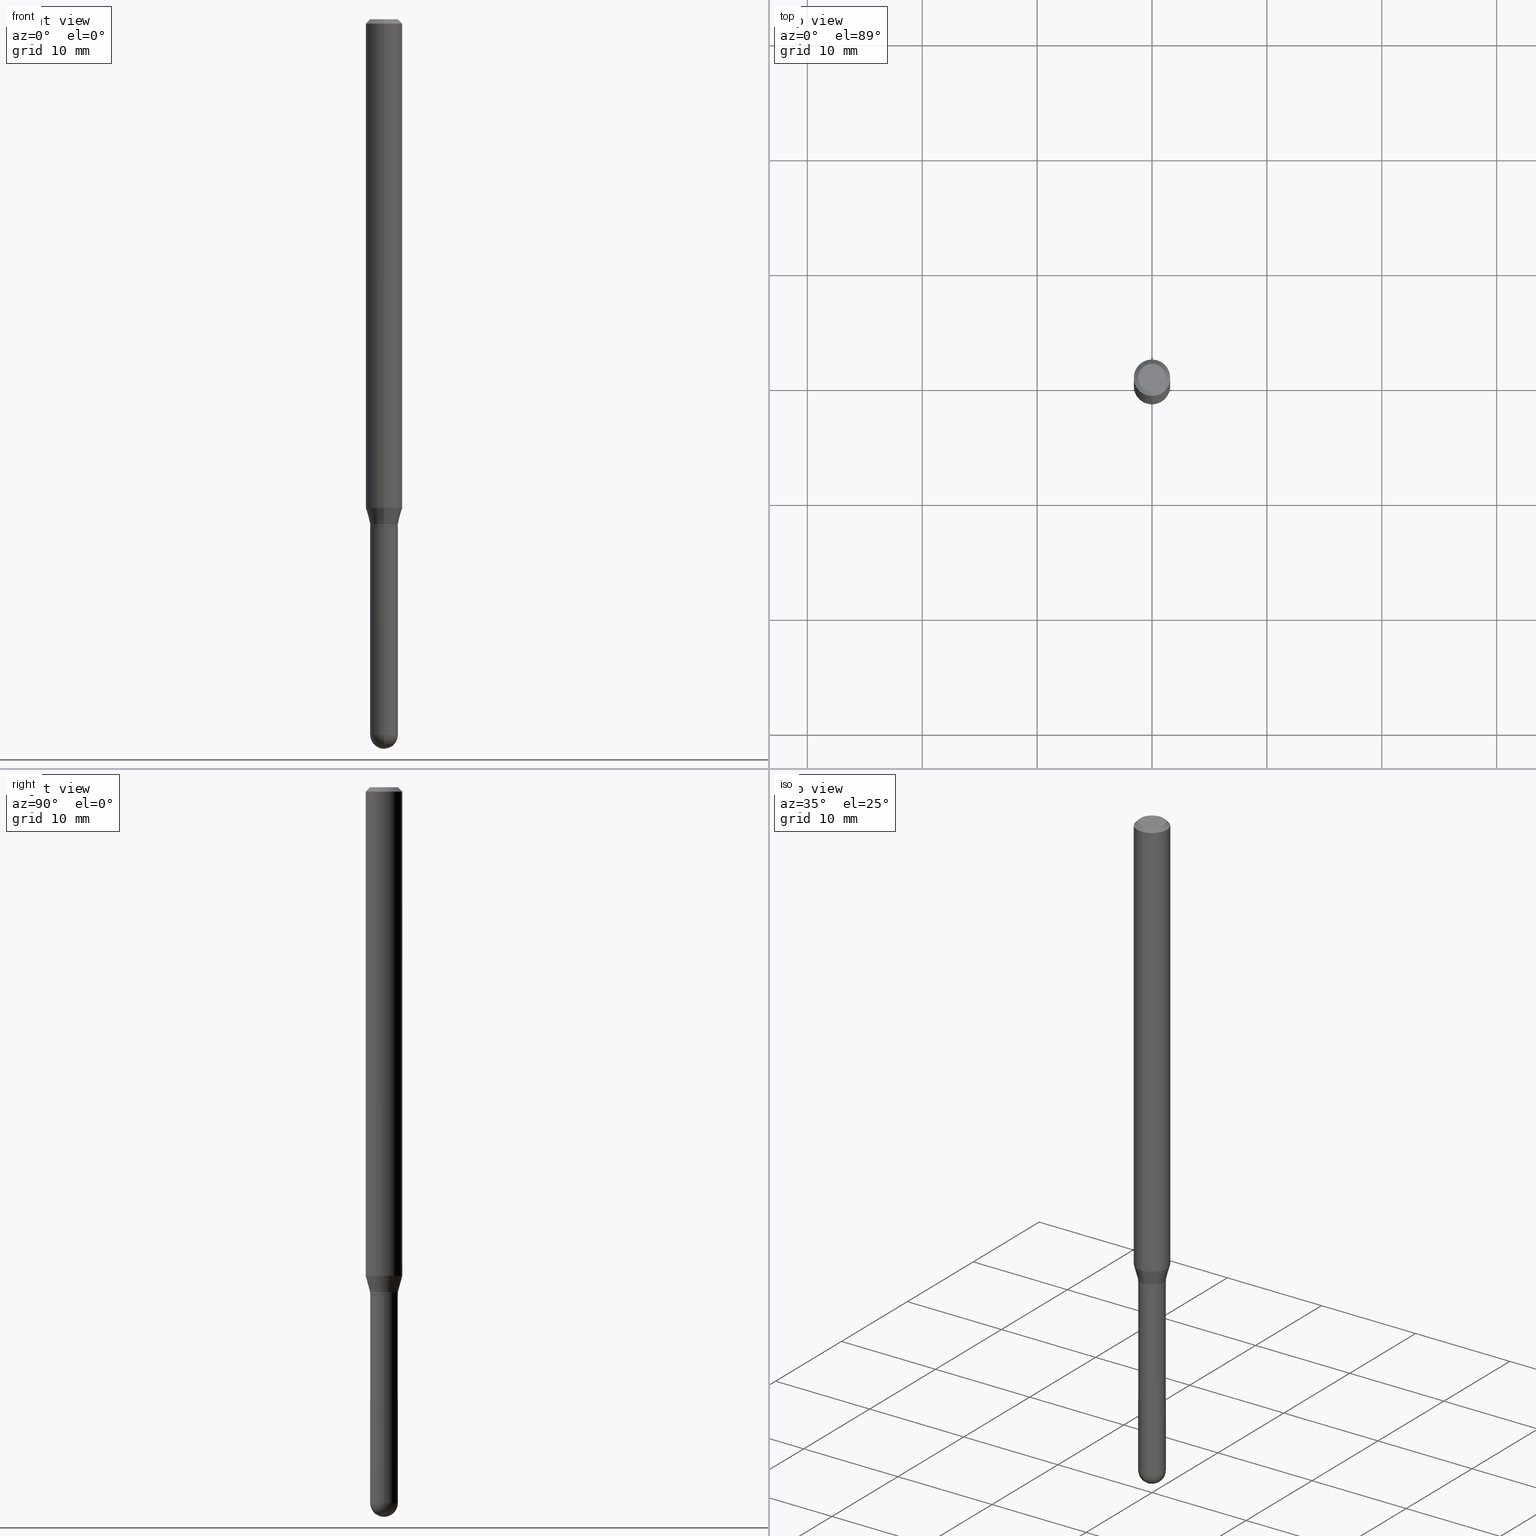
[diagram: canonical four-view strip — front | top / right | iso, engineering-drawing reading convention]
A machine part, canonical four-view strip (front | top / right | iso — engineering-drawing reading convention). The complete STEP part file that produces these views, byte-faithful:
ISO-10303-21;
HEADER;
FILE_DESCRIPTION (( 'STEP AP203' ),
    '1' );
FILE_NAME ('02769.STEP',
    '2024-03-07T21:22:24',
    ( '' ),
    ( '' ),
    'SwSTEP 2.0',
    'SolidWorks 2023',
    '' );
FILE_SCHEMA (( 'CONFIG_CONTROL_DESIGN' ));
ENDSEC;

DATA;
#1 = FACE_OUTER_BOUND ( 'NONE', #468, .T. ) ;
#2 = AXIS2_PLACEMENT_3D ( 'NONE', #217, #14, #355 ) ;
#3 = VERTEX_POINT ( 'NONE', #222 ) ;
#4 = EDGE_CURVE ( 'NONE', #3, #24, #360, .T. ) ;
#5 = CARTESIAN_POINT ( 'NONE',  ( 3.375077994860450284E-16, 0.04749999999999964667, -1.658461561688037794E-16 ) ) ;
#6 = ORIENTED_EDGE ( 'NONE', *, *, #466, .F. ) ;
#7 = CARTESIAN_POINT ( 'NONE',  ( 0.04750000000000000749, -3.316907271900977082E-16, 2.316183968503069432E-30 ) ) ;
#8 = APPROVAL_DATE_TIME ( #96, #434 ) ;
#9 = EDGE_CURVE ( 'NONE', #505, #62, #481, .T. ) ;
#10 = CIRCLE ( 'NONE', #73, 0.04750000000000000749 ) ;
#11 = DATE_AND_TIME ( #188, #374 ) ;
#12 = AXIS2_PLACEMENT_3D ( 'NONE', #494, #421, #322 ) ;
#13 = CONICAL_SURFACE ( 'NONE', #2, 0.06250000000000000000, 0.7853981633974483900 ) ;
#14 = DIRECTION ( 'NONE',  ( 2.445457154578916466E-29, -3.491498024606421119E-15, -1.000000000000000000 ) ) ;
#15 = PRODUCT_DEFINITION ( 'UNKNOWN', '', #273, #167 ) ;
#16 = VERTEX_POINT ( 'NONE', #214 ) ;
#17 = CARTESIAN_POINT ( 'NONE',  ( 6.111640995526039814E-29, -8.731611883255838356E-15, -2.500000000000000000 ) ) ;
#18 = COORDINATED_UNIVERSAL_TIME_OFFSET ( 5, 0, .BEHIND. ) ;
#19 = EDGE_CURVE ( 'NONE', #376, #256, #134, .T. ) ;
#20 = CONICAL_SURFACE ( 'NONE', #122, 0.04749999999999964667, 0.2617993877991505181 ) ;
#21 = ORIENTED_EDGE ( 'NONE', *, *, #263, .T. ) ;
#22 = COORDINATED_UNIVERSAL_TIME_OFFSET ( 5, 0, .BEHIND. ) ;
#23 = CYLINDRICAL_SURFACE ( 'NONE', #55, 0.06250000000000000000 ) ;
#24 = VERTEX_POINT ( 'NONE', #300 ) ;
#25 = DIRECTION ( 'NONE',  ( 6.982962677686265922E-15, 1.000000000000000000, -3.483106191921935554E-15 ) ) ;
#26 = SECURITY_CLASSIFICATION_LEVEL ( 'unclassified' ) ;
#27 = DIRECTION ( 'NONE',  ( -6.982962677686266711E-15, -1.000000000000000000, 5.812442539711199378E-15 ) ) ;
#28 = EDGE_CURVE ( 'NONE', #301, #161, #270, .T. ) ;
#29 = ORIENTED_EDGE ( 'NONE', *, *, #425, .F. ) ;
#30 = LOCAL_TIME ( 16, 22, 24.00000000000000000, #185 ) ;
#31 = DIRECTION ( 'NONE',  ( 0.000000000000000000, 0.000000000000000000, 1.000000000000000000 ) ) ;
#32 = ORIENTED_EDGE ( 'NONE', *, *, #9, .T. ) ;
#33 = FACE_OUTER_BOUND ( 'NONE', #43, .T. ) ;
#34 = ORIENTED_EDGE ( 'NONE', *, *, #93, .T. ) ;
#35 = PRODUCT_DEFINITION_SHAPE ( 'NONE', 'NONE',  #15 ) ;
#36 = ORIENTED_EDGE ( 'NONE', *, *, #103, .F. ) ;
#37 = ORIENTED_EDGE ( 'NONE', *, *, #333, .T. ) ;
#38 = AXIS2_PLACEMENT_3D ( 'NONE', #171, #313, #283 ) ;
#39 = DIRECTION ( 'NONE',  ( 1.000000000000000000, -6.982962677686280910E-15, 0.000000000000000000 ) ) ;
#40 = AXIS2_PLACEMENT_3D ( 'NONE', #305, #461, #420 ) ;
#41 = AXIS2_PLACEMENT_3D ( 'NONE', #344, #272, #121 ) ;
#42 = DIRECTION ( 'NONE',  ( 1.000000000000000000, -6.982962677686280910E-15, 0.000000000000000000 ) ) ;
#43 = EDGE_LOOP ( 'NONE', ( #123, #46, #338, #271 ) ) ;
#44 = DIRECTION ( 'NONE',  ( -2.445468806185136597E-29, 3.491481338843145583E-15, 1.000000000000000000 ) ) ;
#45 = EDGE_LOOP ( 'NONE', ( #130, #345, #107, #21, #471 ) ) ;
#46 = ORIENTED_EDGE ( 'NONE', *, *, #281, .T. ) ;
#47 = DIRECTION ( 'NONE',  ( -6.982962677686265922E-15, -1.000000000000000000, 4.370956789862821150E-15 ) ) ;
#48 = ORIENTED_EDGE ( 'NONE', *, *, #170, .F. ) ;
#49 = EDGE_CURVE ( 'NONE', #3, #256, #334, .T. ) ;
#50 = DIRECTION ( 'NONE',  ( 6.982962677686265922E-15, 1.000000000000000000, 0.000000000000000000 ) ) ;
#51 = ORIENTED_EDGE ( 'NONE', *, *, #103, .T. ) ;
#52 = DIRECTION ( 'NONE',  ( -2.445457154578916466E-29, 3.491498024606421119E-15, 1.000000000000000000 ) ) ;
#53 = LENGTH_MEASURE_WITH_UNIT ( LENGTH_MEASURE( 0.02539999999999999897 ), #175 );
#54 = ORIENTED_EDGE ( 'NONE', *, *, #115, .F. ) ;
#55 = AXIS2_PLACEMENT_3D ( 'NONE', #105, #192, #59 ) ;
#56 = PERSON_AND_ORGANIZATION ( #413, #259 ) ;
#57 = CIRCLE ( 'NONE', #40, 0.04699999999999999317 ) ;
#58 = CARTESIAN_POINT ( 'NONE',  ( 4.253872720390026120E-29, -6.073460813802870975E-15, -1.739500000000000490 ) ) ;
#59 = DIRECTION ( 'NONE',  ( -6.982962677686265922E-15, -1.000000000000000000, 3.491498024606421119E-15 ) ) ;
#60 = ADVANCED_FACE ( 'NONE', ( #228 ), #432, .T. ) ;
#61 = CALENDAR_DATE ( 2024, 7, 3 ) ;
#62 = VERTEX_POINT ( 'NONE', #65 ) ;
#63 = VECTOR ( 'NONE', #250, 39.37007874015748143 ) ;
#64 = VECTOR ( 'NONE', #340, 39.37007874015748143 ) ;
#65 = CARTESIAN_POINT ( 'NONE',  ( -0.04749999999999999362, -6.981509957063897703E-15, -1.740000000000000213 ) ) ;
#66 = FACE_OUTER_BOUND ( 'NONE', #399, .T. ) ;
#67 = EDGE_LOOP ( 'NONE', ( #86, #436 ) ) ;
#68 = CARTESIAN_POINT ( 'NONE',  ( 0.000000000000000000, 0.000000000000000000, 0.000000000000000000 ) ) ;
#69 = SHAPE_DEFINITION_REPRESENTATION ( #35, #406 ) ;
#70 = ADVANCED_FACE ( 'NONE', ( #370 ), #290, .T. ) ;
#71 = PERSON_AND_ORGANIZATION ( #413, #259 ) ;
#72 = CARTESIAN_POINT ( 'NONE',  ( 3.339550858072895387E-16, 0.04699999999999391470, -1.740000000000000213 ) ) ;
#73 = AXIS2_PLACEMENT_3D ( 'NONE', #299, #492, #146 ) ;
#74 = ORIENTED_EDGE ( 'NONE', *, *, #242, .T. ) ;
#75 = CARTESIAN_POINT ( 'NONE',  ( 5.997512247169047773E-29, -8.562857983512815004E-15, -2.452500000000000124 ) ) ;
#76 = VECTOR ( 'NONE', #233, 39.37007874015748143 ) ;
#77 = ORIENTED_EDGE ( 'NONE', *, *, #151, .F. ) ;
#78 = DIRECTION ( 'NONE',  ( -7.105427357601001070E-15, -1.000000000000000000, 0.000000000000000000 ) ) ;
#79 = VERTEX_POINT ( 'NONE', #193 ) ;
#80 = ORIENTED_EDGE ( 'NONE', *, *, #501, .F. ) ;
#81 = APPLICATION_CONTEXT ( 'configuration controlled 3d designs of mechanical parts and assemblies' ) ;
#82 = AXIS2_PLACEMENT_3D ( 'NONE', #293, #489, #455 ) ;
#83 = CARTESIAN_POINT ( 'NONE',  ( -4.287811248607203282E-16, -0.06250000000000005551, -0.01500000000000011047 ) ) ;
#84 = AXIS2_PLACEMENT_3D ( 'NONE', #456, #241, #112 ) ;
#85 = SECURITY_CLASSIFICATION ( '', '', #26 ) ;
#86 = ORIENTED_EDGE ( 'NONE', *, *, #151, .T. ) ;
#87 = ADVANCED_FACE ( 'NONE', ( #369 ), #451, .T. ) ;
#88 = ORIENTED_EDGE ( 'NONE', *, *, #4, .T. ) ;
#89 = FACE_OUTER_BOUND ( 'NONE', #212, .T. ) ;
#90 = CC_DESIGN_PERSON_AND_ORGANIZATION_ASSIGNMENT ( #159, #232, ( #85 ) ) ;
#91 = CARTESIAN_POINT ( 'NONE',  ( 4.255095448967314724E-29, -6.075206562815173394E-15, -1.739999999999999991 ) ) ;
#92 = CIRCLE ( 'NONE', #365, 0.04749999999999971606 ) ;
#93 = EDGE_CURVE ( 'NONE', #377, #301, #57, .T. ) ;
#94 = CARTESIAN_POINT ( 'NONE',  ( 4.255115722762138620E-29, -6.075177529587074600E-15, -1.740000000000000213 ) ) ;
#95 = ORIENTED_EDGE ( 'NONE', *, *, #28, .F. ) ;
#96 = DATE_AND_TIME ( #61, #30 ) ;
#97 = CARTESIAN_POINT ( 'NONE',  ( 4.230640877421526403E-29, -6.040291582569108449E-15, -1.730000000000000204 ) ) ;
#98 = EDGE_LOOP ( 'NONE', ( #95, #499, #224, #219 ) ) ;
#99 = PLANE ( 'NONE',  #266 ) ;
#100 = AXIS2_PLACEMENT_3D ( 'NONE', #373, #31, #157 ) ;
#101 = DIRECTION ( 'NONE',  ( 2.445457154578916466E-29, -3.491498024606421119E-15, -1.000000000000000000 ) ) ;
#102 = DIRECTION ( 'NONE',  ( -6.982962677686265922E-15, -1.000000000000000000, 3.483106191921935554E-15 ) ) ;
#103 = EDGE_CURVE ( 'NONE', #303, #62, #223, .T. ) ;
#104 = ORIENTED_EDGE ( 'NONE', *, *, #368, .T. ) ;
#105 = CARTESIAN_POINT ( 'NONE',  ( 0.000000000000000000, 0.000000000000000000, 0.000000000000000000 ) ) ;
#106 = COORDINATED_UNIVERSAL_TIME_OFFSET ( 5, 0, .BEHIND. ) ;
#107 = ORIENTED_EDGE ( 'NONE', *, *, #199, .T. ) ;
#108 = AXIS2_PLACEMENT_3D ( 'NONE', #398, #353, #389 ) ;
#109 = EDGE_CURVE ( 'NONE', #377, #502, #269, .T. ) ;
#110 = CARTESIAN_POINT ( 'NONE',  ( 4.364351673553919652E-16, 0.06249999999999995143, -0.01500000000000054588 ) ) ;
#111 = AXIS2_PLACEMENT_3D ( 'NONE', #91, #230, #323 ) ;
#112 = DIRECTION ( 'NONE',  ( 1.000000000000000000, -6.982962677686261977E-15, 0.000000000000000000 ) ) ;
#113 = ORIENTED_EDGE ( 'NONE', *, *, #449, .F. ) ;
#114 = APPROVAL_DATE_TIME ( #411, #184 ) ;
#115 = EDGE_CURVE ( 'NONE', #256, #16, #375, .T. ) ;
#116 = CARTESIAN_POINT ( 'NONE',  ( 0.04750000000000000749, -7.650708483740042707E-15, -2.452500000000000124 ) ) ;
#117 = PRODUCT ( '02769', '02769', '', ( #438 ) ) ;
#118 = CYLINDRICAL_SURFACE ( 'NONE', #41, 0.04749999999999964667 ) ;
#119 = VERTEX_POINT ( 'NONE', #381 ) ;
#120 = LOCAL_TIME ( 16, 22, 24.00000000000000000, #500 ) ;
#121 = DIRECTION ( 'NONE',  ( -6.982962677686265133E-15, -1.000000000000000000, 3.491498024606421514E-15 ) ) ;
#122 = AXIS2_PLACEMENT_3D ( 'NONE', #206, #306, #430 ) ;
#123 = ORIENTED_EDGE ( 'NONE', *, *, #275, .F. ) ;
#124 = CARTESIAN_POINT ( 'NONE',  ( 5.993450207295445537E-29, -8.568675055808764986E-15, -2.452500000000000124 ) ) ;
#125 = CARTESIAN_POINT ( 'NONE',  ( -4.364351673553916201E-16, -0.06250000000000000000, 2.182186265379013199E-16 ) ) ;
#126 = DIRECTION ( 'NONE',  ( -1.000000000000000000, 7.105427357601001070E-15, -4.926315508542082329E-29 ) ) ;
#127 = ORIENTED_EDGE ( 'NONE', *, *, #404, .T. ) ;
#128 = ORIENTED_EDGE ( 'NONE', *, *, #183, .F. ) ;
#129 = AXIS2_PLACEMENT_3D ( 'NONE', #291, #267, #418 ) ;
#130 = ORIENTED_EDGE ( 'NONE', *, *, #9, .F. ) ;
#131 = FACE_OUTER_BOUND ( 'NONE', #67, .T. ) ;
#132 = ADVANCED_FACE ( 'NONE', ( #337 ), #295, .T. ) ;
#133 = CARTESIAN_POINT ( 'NONE',  ( 3.357314426466885089E-16, 0.04699999999999391470, -1.740000000000000213 ) ) ;
#134 = LINE ( 'NONE', #247, #426 ) ;
#135 = VECTOR ( 'NONE', #210, 39.37007874015748854 ) ;
#136 = UNCERTAINTY_MEASURE_WITH_UNIT (LENGTH_MEASURE( 1.000000000000000082E-05 ), #396, 'distance_accuracy_value', 'NONE');
#137 = CARTESIAN_POINT ( 'NONE',  ( 3.316907271901566262E-16, 0.04749999999999129918, -2.452500000000000568 ) ) ;
#138 = DIRECTION ( 'NONE',  ( -2.445457154578916466E-29, 3.491498024606421119E-15, 1.000000000000000000 ) ) ;
#139 = DIRECTION ( 'NONE',  ( 4.937700262164548042E-15, 0.7071067811865451302, -0.7071067811865499042 ) ) ;
#140 = EDGE_LOOP ( 'NONE', ( #104, #88, #335, #54 ) ) ;
#141 = MANIFOLD_SOLID_BREP ( 'Body-Move/Copy2[1]', #416 ) ;
#142 = AXIS2_PLACEMENT_3D ( 'NONE', #231, #262, #27 ) ;
#143 = CIRCLE ( 'NONE', #350, 0.04749999999999999362 ) ;
#144 = CARTESIAN_POINT ( 'NONE',  ( 3.316907271901401095E-16, 0.04749999999999392208, -1.740000000000000657 ) ) ;
#145 = DIRECTION ( 'NONE',  ( -6.982962677686265922E-15, -1.000000000000000000, 4.370956789862821150E-15 ) ) ;
#146 = DIRECTION ( 'NONE',  ( 1.000000000000000000, -6.982962677686280910E-15, 0.000000000000000000 ) ) ;
#147 = ADVANCED_FACE ( 'NONE', ( #33 ), #118, .T. ) ;
#148 = CALENDAR_DATE ( 2024, 7, 3 ) ;
#149 = DIRECTION ( 'NONE',  ( -1.000000000000000000, 6.982962677686265922E-15, -4.876176775795935793E-29 ) ) ;
#150 = EDGE_LOOP ( 'NONE', ( #239, #512 ) ) ;
#151 = EDGE_CURVE ( 'NONE', #496, #79, #143, .T. ) ;
#152 = PERSON_AND_ORGANIZATION ( #413, #259 ) ;
#153 = VECTOR ( 'NONE', #486, 39.37007874015748143 ) ;
#154 = CARTESIAN_POINT ( 'NONE',  ( -3.316907271900519050E-16, -0.04750000000000561412, -1.739500000000000046 ) ) ;
#155 = LOCAL_TIME ( 16, 22, 24.00000000000000000, #22 ) ;
#156 = DATE_AND_TIME ( #366, #120 ) ;
#157 = DIRECTION ( 'NONE',  ( 1.000000000000000000, 0.000000000000000000, 0.000000000000000000 ) ) ;
#158 = ORIENTED_EDGE ( 'NONE', *, *, #452, .T. ) ;
#159 = PERSON_AND_ORGANIZATION ( #413, #259 ) ;
#160 = FACE_OUTER_BOUND ( 'NONE', #441, .T. ) ;
#161 = VERTEX_POINT ( 'NONE', #423 ) ;
#162 = CARTESIAN_POINT ( 'NONE',  ( 4.093742322192203032E-29, -5.844834862233742356E-15, -1.674019237886465783 ) ) ;
#163 = DIRECTION ( 'NONE',  ( -2.445468806185136597E-29, 3.491481338843145583E-15, 1.000000000000000000 ) ) ;
#164 = CIRCLE ( 'NONE', #286, 0.06250000000000000000 ) ;
#165 = DIRECTION ( 'NONE',  ( -6.982962677686265133E-15, -1.000000000000000000, 3.491498024606421514E-15 ) ) ;
#166 = ADVANCED_FACE ( 'NONE', ( #243 ), #20, .T. ) ;
#167 = DESIGN_CONTEXT ( 'detailed design', #81, 'design' ) ;
#168 = CIRCLE ( 'NONE', #475, 0.04749999999999964667 ) ;
#169 = CARTESIAN_POINT ( 'NONE',  ( 4.255095448967314724E-29, -6.075206562815173394E-15, -1.739999999999999991 ) ) ;
#170 = EDGE_CURVE ( 'NONE', #79, #16, #503, .T. ) ;
#171 = CARTESIAN_POINT ( 'NONE',  ( 5.993450207295445537E-29, -8.568675055808764986E-15, -2.452500000000000124 ) ) ;
#172 = ORIENTED_EDGE ( 'NONE', *, *, #221, .T. ) ;
#173 = CARTESIAN_POINT ( 'NONE',  ( 3.375077994860872818E-16, 0.04749999999999360289, -1.730000000000000426 ) ) ;
#174 = EDGE_CURVE ( 'NONE', #509, #318, #391, .T. ) ;
#175 =( LENGTH_UNIT ( ) NAMED_UNIT ( * ) SI_UNIT ( $, .METRE. ) );
#176 = ORIENTED_EDGE ( 'NONE', *, *, #221, .F. ) ;
#177 = LINE ( 'NONE', #173, #135 ) ;
#178 = AXIS2_PLACEMENT_3D ( 'NONE', #144, #186, #149 ) ;
#179 = ORIENTED_EDGE ( 'NONE', *, *, #263, .F. ) ;
#180 = CIRCLE ( 'NONE', #433, 0.06250000000000000000 ) ;
#181 = PERSON_AND_ORGANIZATION ( #413, #259 ) ;
#182 = LINE ( 'NONE', #5, #289 ) ;
#183 = EDGE_CURVE ( 'NONE', #505, #388, #189, .T. ) ;
#184 = APPROVAL ( #504, 'UNSPECIFIED' ) ;
#185 = COORDINATED_UNIVERSAL_TIME_OFFSET ( 5, 0, .BEHIND. ) ;
#186 = DIRECTION ( 'NONE',  ( 2.438088387897960049E-29, -3.491481338843145188E-15, -1.000000000000000000 ) ) ;
#187 = DIRECTION ( 'NONE',  ( -2.445457154578916466E-29, 3.491498024606421119E-15, 1.000000000000000000 ) ) ;
#188 = CALENDAR_DATE ( 2024, 7, 3 ) ;
#189 = CIRCLE ( 'NONE', #477, 0.04750000000000000749 ) ;
#190 = DIRECTION ( 'NONE',  ( -2.445457154578916466E-29, 3.491498024606421119E-15, 1.000000000000000000 ) ) ;
#191 = DATE_TIME_ROLE ( 'classification_date' ) ;
#192 = DIRECTION ( 'NONE',  ( -2.445457154578916466E-29, 3.491498024606421119E-15, 1.000000000000000000 ) ) ;
#193 = CARTESIAN_POINT ( 'NONE',  ( -3.773273898774340269E-16, -0.04749999999999999362, -1.622999989695991493E-16 ) ) ;
#194 = PERSON_AND_ORGANIZATION_ROLE ( 'design_supplier' ) ;
#195 = DIRECTION ( 'NONE',  ( -2.445457154578916466E-29, 3.491498024606421119E-15, 1.000000000000000000 ) ) ;
#196 = ORIENTED_EDGE ( 'NONE', *, *, #348, .T. ) ;
#197 = AXIS2_PLACEMENT_3D ( 'NONE', #208, #252, #474 ) ;
#198 = PERSON_AND_ORGANIZATION ( #413, #259 ) ;
#199 = EDGE_CURVE ( 'NONE', #388, #509, #469, .T. ) ;
#200 = CARTESIAN_POINT ( 'NONE',  ( 5.993450207295445537E-29, -8.568675055808764986E-15, -2.452500000000000124 ) ) ;
#201 = ORIENTED_EDGE ( 'NONE', *, *, #109, .F. ) ;
#202 = CIRCLE ( 'NONE', #279, 0.06250000000000000000 ) ;
#203 = VECTOR ( 'NONE', #278, 39.37007874015748143 ) ;
#204 = ADVANCED_FACE ( 'NONE', ( #160 ), #510, .T. ) ;
#205 = EDGE_LOOP ( 'NONE', ( #216, #463, #314, #29 ) ) ;
#206 = CARTESIAN_POINT ( 'NONE',  ( 4.230640877421526403E-29, -6.040291582569108449E-15, -1.730000000000000204 ) ) ;
#207 = CC_DESIGN_PERSON_AND_ORGANIZATION_ASSIGNMENT ( #56, #261, ( #117 ) ) ;
#208 = CARTESIAN_POINT ( 'NONE',  ( 0.000000000000000000, 0.000000000000000000, 0.000000000000000000 ) ) ;
#209 = EDGE_LOOP ( 'NONE', ( #282, #32, #36, #179, #307 ) ) ;
#210 = DIRECTION ( 'NONE',  ( 1.839019923739601893E-15, 0.2588190451025252359, 0.9659258262890670910 ) ) ;
#211 = FACE_OUTER_BOUND ( 'NONE', #98, .T. ) ;
#212 = EDGE_LOOP ( 'NONE', ( #467, #172, #128, #113 ) ) ;
#213 = DIRECTION ( 'NONE',  ( -6.982962677686265133E-15, -1.000000000000000000, 5.751258934030070759E-15 ) ) ;
#214 = CARTESIAN_POINT ( 'NONE',  ( -4.364351673553912750E-16, -0.06250000000000005551, -0.01500000000000011047 ) ) ;
#215 =( NAMED_UNIT ( * ) SI_UNIT ( $, .STERADIAN. ) SOLID_ANGLE_UNIT ( ) );
#216 = ORIENTED_EDGE ( 'NONE', *, *, #501, .T. ) ;
#217 = CARTESIAN_POINT ( 'NONE',  ( 3.668185731868455291E-31, -5.237247036909746039E-17, -0.01500000000000032904 ) ) ;
#218 =( NAMED_UNIT ( * ) PLANE_ANGLE_UNIT ( ) SI_UNIT ( $, .RADIAN. ) );
#219 = ORIENTED_EDGE ( 'NONE', *, *, #281, .F. ) ;
#220 = LINE ( 'NONE', #7, #63 ) ;
#221 = EDGE_CURVE ( 'NONE', #397, #388, #92, .T. ) ;
#222 = CARTESIAN_POINT ( 'NONE',  ( 4.440892098501036369E-16, 0.06249999999999418521, -1.674019237886466227 ) ) ;
#223 = CIRCLE ( 'NONE', #84, 0.04749999999999999362 ) ;
#224 = ORIENTED_EDGE ( 'NONE', *, *, #109, .T. ) ;
#225 = LINE ( 'NONE', #408, #244 ) ;
#226 = DIRECTION ( 'NONE',  ( -2.445457154578916466E-29, 3.491498024606421514E-15, 1.000000000000000000 ) ) ;
#227 = VECTOR ( 'NONE', #139, 39.37007874015748143 ) ;
#228 = FACE_OUTER_BOUND ( 'NONE', #400, .T. ) ;
#229 = AXIS2_PLACEMENT_3D ( 'NONE', #482, #458, #165 ) ;
#230 = DIRECTION ( 'NONE',  ( -2.445457154578916466E-29, 3.491498024606421119E-15, 1.000000000000000000 ) ) ;
#231 = CARTESIAN_POINT ( 'NONE',  ( 4.255095448967314724E-29, -6.075206562815173394E-15, -1.739999999999999991 ) ) ;
#232 = PERSON_AND_ORGANIZATION_ROLE ( 'classification_officer' ) ;
#233 = DIRECTION ( 'NONE',  ( -4.937700262164674260E-15, -0.7071067811865632269, 0.7071067811865319186 ) ) ;
#234 = AXIS2_PLACEMENT_3D ( 'NONE', #251, #395, #50 ) ;
#235 = EDGE_LOOP ( 'NONE', ( #51, #37 ) ) ;
#236 = APPROVAL_ROLE ( '' ) ;
#237 = VECTOR ( 'NONE', #445, 39.37007874015748143 ) ;
#238 = CC_DESIGN_PERSON_AND_ORGANIZATION_ASSIGNMENT ( #476, #364, ( #15 ) ) ;
#239 = ORIENTED_EDGE ( 'NONE', *, *, #93, .F. ) ;
#240 = DIRECTION ( 'NONE',  ( -2.445457154578916466E-29, 3.491498024606421119E-15, 1.000000000000000000 ) ) ;
#241 = DIRECTION ( 'NONE',  ( -2.445468806185136597E-29, 3.491481338843145583E-15, 1.000000000000000000 ) ) ;
#242 = EDGE_CURVE ( 'NONE', #24, #16, #164, .T. ) ;
#243 = FACE_OUTER_BOUND ( 'NONE', #339, .T. ) ;
#244 = VECTOR ( 'NONE', #226, 39.37007874015748143 ) ;
#245 = CYLINDRICAL_SURFACE ( 'NONE', #197, 0.04750000000000000749 ) ;
#246 = CARTESIAN_POINT ( 'NONE',  ( 8.024673628307734287E-45, -1.145721652447930340E-30, -3.281461551384041367E-16 ) ) ;
#247 = CARTESIAN_POINT ( 'NONE',  ( -3.316907271900528910E-16, -0.04750000000000569045, -1.729999999999999760 ) ) ;
#248 = ORIENTED_EDGE ( 'NONE', *, *, #49, .F. ) ;
#249 = CC_DESIGN_SECURITY_CLASSIFICATION ( #85, ( #273 ) ) ;
#250 = DIRECTION ( 'NONE',  ( -2.445468806185136877E-29, 3.491481338843145188E-15, 1.000000000000000000 ) ) ;
#251 = CARTESIAN_POINT ( 'NONE',  ( 5.993450207295445537E-29, -8.568675055808764986E-15, -2.452500000000000124 ) ) ;
#252 = DIRECTION ( 'NONE',  ( -2.445468806185136597E-29, 3.491481338843145583E-15, 1.000000000000000000 ) ) ;
#253 = ORIENTED_EDGE ( 'NONE', *, *, #368, .F. ) ;
#254 = ADVANCED_FACE ( 'NONE', ( #131 ), #472, .F. ) ;
#255 = DIRECTION ( 'NONE',  ( -2.445457154578916466E-29, 3.491498024606421119E-15, 1.000000000000000000 ) ) ;
#256 = VERTEX_POINT ( 'NONE', #402 ) ;
#257 = DIRECTION ( 'NONE',  ( -2.445457154578915906E-29, 3.491498024606421514E-15, 1.000000000000000000 ) ) ;
#258 = CC_DESIGN_DATE_AND_TIME_ASSIGNMENT ( #11, #442, ( #15 ) ) ;
#259 = ORGANIZATION ( 'UNSPECIFIED', 'UNSPECIFIED', '' ) ;
#260 = AXIS2_PLACEMENT_3D ( 'NONE', #75, #386, #336 ) ;
#261 = PERSON_AND_ORGANIZATION_ROLE ( 'design_owner' ) ;
#262 = DIRECTION ( 'NONE',  ( -2.445457154578916466E-29, 3.491498024606421119E-15, 1.000000000000000000 ) ) ;
#263 = EDGE_CURVE ( 'NONE', #509, #303, #220, .T. ) ;
#264 = EDGE_CURVE ( 'NONE', #119, #3, #177, .T. ) ;
#265 = CALENDAR_DATE ( 2024, 7, 3 ) ;
#266 = AXIS2_PLACEMENT_3D ( 'NONE', #169, #257, #347 ) ;
#267 = DIRECTION ( 'NONE',  ( -2.445457154578916466E-29, 3.491498024606421119E-15, 1.000000000000000000 ) ) ;
#268 = FACE_OUTER_BOUND ( 'NONE', #45, .T. ) ;
#269 = LINE ( 'NONE', #465, #76 ) ;
#270 = LINE ( 'NONE', #72, #64 ) ;
#271 = ORIENTED_EDGE ( 'NONE', *, *, #319, .F. ) ;
#272 = DIRECTION ( 'NONE',  ( -2.445457154578916466E-29, 3.491498024606421119E-15, 1.000000000000000000 ) ) ;
#273 = PRODUCT_DEFINITION_FORMATION_WITH_SPECIFIED_SOURCE ( 'ANY', '', #117, .NOT_KNOWN. ) ;
#274 = CLOSED_SHELL ( 'NONE', ( #87, #493, #70, #412, #60, #166, #331, #361, #254, #372, #385, #147 ) ) ;
#275 = EDGE_CURVE ( 'NONE', #161, #119, #182, .T. ) ;
#276 = ORIENTED_EDGE ( 'NONE', *, *, #19, .F. ) ;
#277 = CARTESIAN_POINT ( 'NONE',  ( 3.668185731868455291E-31, -5.237247036909746039E-17, -0.01500000000000032904 ) ) ;
#278 = DIRECTION ( 'NONE',  ( -2.445457154578916466E-29, 3.491498024606421514E-15, 1.000000000000000000 ) ) ;
#279 = AXIS2_PLACEMENT_3D ( 'NONE', #320, #138, #47 ) ;
#280 = EDGE_LOOP ( 'NONE', ( #342, #450, #357, #380 ) ) ;
#281 = EDGE_CURVE ( 'NONE', #161, #502, #168, .T. ) ;
#282 = ORIENTED_EDGE ( 'NONE', *, *, #449, .T. ) ;
#283 = DIRECTION ( 'NONE',  ( 6.982962677686265922E-15, 1.000000000000000000, -5.751258934030062081E-15 ) ) ;
#284 = CIRCLE ( 'NONE', #414, 0.04749999999999999362 ) ;
#285 = CARTESIAN_POINT ( 'NONE',  ( 0.000000000000000000, 0.000000000000000000, 0.000000000000000000 ) ) ;
#286 = AXIS2_PLACEMENT_3D ( 'NONE', #277, #240, #304 ) ;
#287 = DIRECTION ( 'NONE',  ( -6.982962677686265922E-15, -1.000000000000000000, 3.491498024606421119E-15 ) ) ;
#288 = CYLINDRICAL_SURFACE ( 'NONE', #401, 0.06250000000000000000 ) ;
#289 = VECTOR ( 'NONE', #478, 39.37007874015748143 ) ;
#290 = CONICAL_SURFACE ( 'NONE', #297, 0.06250000000000000000, 0.7853981633974483900 ) ;
#291 = CARTESIAN_POINT ( 'NONE',  ( 8.024673628307734287E-45, -1.145721652447930340E-30, -3.281461551384041367E-16 ) ) ;
#292 = DATE_AND_TIME ( #148, #155 ) ;
#293 = CARTESIAN_POINT ( 'NONE',  ( 4.230640877421526403E-29, -6.040291582569108449E-15, -1.730000000000000204 ) ) ;
#294 = CIRCLE ( 'NONE', #82, 0.04749999999999964667 ) ;
#295 = CYLINDRICAL_SURFACE ( 'NONE', #439, 0.04750000000000000749 ) ;
#296 = ORIENTED_EDGE ( 'NONE', *, *, #174, .F. ) ;
#297 = AXIS2_PLACEMENT_3D ( 'NONE', #446, #101, #25 ) ;
#298 = APPROVAL_PERSON_ORGANIZATION ( #407, #434, #410 ) ;
#299 = CARTESIAN_POINT ( 'NONE',  ( 5.997512247169047773E-29, -8.562857983512815004E-15, -2.452500000000000124 ) ) ;
#300 = CARTESIAN_POINT ( 'NONE',  ( 4.440892098501038342E-16, 0.06249999999999995143, -0.01500000000000054588 ) ) ;
#301 = VERTEX_POINT ( 'NONE', #133 ) ;
#302 = MANIFOLD_SOLID_BREP ( 'Body-Move/Copy2[2]', #274 ) ;
#303 = VERTEX_POINT ( 'NONE', #317 ) ;
#304 = DIRECTION ( 'NONE',  ( -6.982962677686265922E-15, -1.000000000000000000, 3.483106191921935554E-15 ) ) ;
#305 = CARTESIAN_POINT ( 'NONE',  ( 4.255095448967314724E-29, -6.075206562815173394E-15, -1.739999999999999991 ) ) ;
#306 = DIRECTION ( 'NONE',  ( -2.445457154578916466E-29, 3.491498024606421119E-15, 1.000000000000000000 ) ) ;
#307 = ORIENTED_EDGE ( 'NONE', *, *, #174, .T. ) ;
#308 = ORIENTED_EDGE ( 'NONE', *, *, #28, .T. ) ;
#309 = CC_DESIGN_APPROVAL ( #434, ( #15 ) ) ;
#310 = CARTESIAN_POINT ( 'NONE',  ( -3.316907271900528910E-16, -0.04750000000000569045, -1.729999999999999760 ) ) ;
#311 = DIRECTION ( 'NONE',  ( -1.807323732225331717E-15, -0.2588190451025184080, 0.9659258262890689783 ) ) ;
#312 = PRODUCT_RELATED_PRODUCT_CATEGORY ( 'detail', '', ( #117 ) ) ;
#313 = DIRECTION ( 'NONE',  ( -1.000000000000000000, 6.982962677686265922E-15, -4.883557194083113462E-29 ) ) ;
#314 = ORIENTED_EDGE ( 'NONE', *, *, #452, .F. ) ;
#315 = DIRECTION ( 'NONE',  ( -2.445457154578916466E-29, 3.491498024606421119E-15, 1.000000000000000000 ) ) ;
#316 = CONICAL_SURFACE ( 'NONE', #111, 0.04699999999999999317, 0.7853981633974739252 ) ;
#317 = CARTESIAN_POINT ( 'NONE',  ( 0.04749999999999999362, -6.406868256777172111E-15, -1.740000000000000213 ) ) ;
#318 = VERTEX_POINT ( 'NONE', #137 ) ;
#319 = EDGE_CURVE ( 'NONE', #119, #376, #383, .T. ) ;
#320 = CARTESIAN_POINT ( 'NONE',  ( 4.093742322192203032E-29, -5.844834862233742356E-15, -1.674019237886465783 ) ) ;
#321 = ORIENTED_EDGE ( 'NONE', *, *, #199, .F. ) ;
#322 = DIRECTION ( 'NONE',  ( -6.982962677686265133E-15, -1.000000000000000000, 5.751258934030070759E-15 ) ) ;
#323 = DIRECTION ( 'NONE',  ( -6.982962677686266711E-15, -1.000000000000000000, 5.812442539711199378E-15 ) ) ;
#324 = CARTESIAN_POINT ( 'NONE',  ( 4.440892098500625669E-16, 0.06250000000000000000, -2.182186265379013199E-16 ) ) ;
#325 = DIRECTION ( 'NONE',  ( -6.982962677686266711E-15, -1.000000000000000000, 5.812442539711199378E-15 ) ) ;
#326 = APPROVAL_PERSON_ORGANIZATION ( #181, #483, #491 ) ;
#327 = VECTOR ( 'NONE', #384, 39.37007874015748143 ) ;
#328 = APPROVAL_STATUS ( 'not_yet_approved' ) ;
#329 = FACE_OUTER_BOUND ( 'NONE', #140, .T. ) ;
#330 = FACE_OUTER_BOUND ( 'NONE', #235, .T. ) ;
#331 = ADVANCED_FACE ( 'NONE', ( #392 ), #288, .T. ) ;
#332 = AXIS2_PLACEMENT_3D ( 'NONE', #97, #255, #213 ) ;
#333 = EDGE_CURVE ( 'NONE', #62, #303, #284, .T. ) ;
#334 = CIRCLE ( 'NONE', #490, 0.06250000000000000000 ) ;
#335 = ORIENTED_EDGE ( 'NONE', *, *, #404, .F. ) ;
#336 = DIRECTION ( 'NONE',  ( 1.000000000000000000, -6.982962677686280910E-15, 0.000000000000000000 ) ) ;
#337 = FACE_OUTER_BOUND ( 'NONE', #209, .T. ) ;
#338 = ORIENTED_EDGE ( 'NONE', *, *, #425, .T. ) ;
#339 = EDGE_LOOP ( 'NONE', ( #435, #393, #343, #248 ) ) ;
#340 = DIRECTION ( 'NONE',  ( 5.024295867788190974E-15, 0.7071067811865681119, 0.7071067811865270336 ) ) ;
#341 = CARTESIAN_POINT ( 'NONE',  ( 5.997512247169047773E-29, -8.562857983512815004E-15, -2.452500000000000124 ) ) ;
#342 = ORIENTED_EDGE ( 'NONE', *, *, #4, .F. ) ;
#343 = ORIENTED_EDGE ( 'NONE', *, *, #19, .T. ) ;
#344 = CARTESIAN_POINT ( 'NONE',  ( 0.000000000000000000, 0.000000000000000000, 0.000000000000000000 ) ) ;
#345 = ORIENTED_EDGE ( 'NONE', *, *, #183, .T. ) ;
#346 = DIMENSIONAL_EXPONENTS ( 1.000000000000000000, 0.000000000000000000, 0.000000000000000000, 0.000000000000000000, 0.000000000000000000, 0.000000000000000000, 0.000000000000000000 ) ;
#347 = DIRECTION ( 'NONE',  ( -6.982962677686265922E-15, -1.000000000000000000, 3.491498024606421514E-15 ) ) ;
#348 = EDGE_CURVE ( 'NONE', #397, #318, #447, .T. ) ;
#349 = CONICAL_SURFACE ( 'NONE', #142, 0.04699999999999999317, 0.7853981633974739252 ) ;
#350 = AXIS2_PLACEMENT_3D ( 'NONE', #246, #464, #460 ) ;
#351 = SPHERICAL_SURFACE ( 'NONE', #38, 0.04749999999999971606 ) ;
#352 = ORIENTED_EDGE ( 'NONE', *, *, #466, .T. ) ;
#353 = DIRECTION ( 'NONE',  ( 2.445457154578915906E-29, -3.491498024606421514E-15, -1.000000000000000000 ) ) ;
#354 = CARTESIAN_POINT ( 'NONE',  ( 4.253872720390026120E-29, -6.073460813802870975E-15, -1.739500000000000490 ) ) ;
#355 = DIRECTION ( 'NONE',  ( 6.982962677686265922E-15, 1.000000000000000000, -3.483106191921935554E-15 ) ) ;
#356 = DIRECTION ( 'NONE',  ( -2.445468806185136597E-29, 3.491481338843145583E-15, 1.000000000000000000 ) ) ;
#357 = ORIENTED_EDGE ( 'NONE', *, *, #115, .T. ) ;
#358 = APPLICATION_PROTOCOL_DEFINITION ( 'international standard', 'config_control_design', 1994, #81 ) ;
#359 = LINE ( 'NONE', #110, #227 ) ;
#360 = LINE ( 'NONE', #324, #237 ) ;
#361 = ADVANCED_FACE ( 'NONE', ( #1 ), #13, .T. ) ;
#362 = APPROVAL_STATUS ( 'not_yet_approved' ) ;
#363 = CARTESIAN_POINT ( 'NONE',  ( -3.375077994859866034E-16, -0.04750000000000842437, -2.452499999999999680 ) ) ;
#364 = PERSON_AND_ORGANIZATION_ROLE ( 'creator' ) ;
#365 = AXIS2_PLACEMENT_3D ( 'NONE', #200, #126, #78 ) ;
#366 = CALENDAR_DATE ( 2024, 7, 3 ) ;
#367 = CARTESIAN_POINT ( 'NONE',  ( 4.255095448967314724E-29, -6.075206562815173394E-15, -1.739999999999999991 ) ) ;
#368 = EDGE_CURVE ( 'NONE', #256, #3, #202, .T. ) ;
#369 = FACE_OUTER_BOUND ( 'NONE', #205, .T. ) ;
#370 = FACE_OUTER_BOUND ( 'NONE', #428, .T. ) ;
#371 = DIRECTION ( 'NONE',  ( -2.445457154578916466E-29, 3.491498024606421119E-15, 1.000000000000000000 ) ) ;
#372 = ADVANCED_FACE ( 'NONE', ( #444 ), #99, .F. ) ;
#373 = CARTESIAN_POINT ( 'NONE',  ( 0.000000000000000000, 0.000000000000000000, 0.000000000000000000 ) ) ;
#374 = LOCAL_TIME ( 16, 22, 24.00000000000000000, #18 ) ;
#375 = LINE ( 'NONE', #125, #203 ) ;
#376 = VERTEX_POINT ( 'NONE', #310 ) ;
#377 = VERTEX_POINT ( 'NONE', #470 ) ;
#378 = ADVANCED_FACE ( 'NONE', ( #89 ), #351, .T. ) ;
#379 = DIRECTION ( 'NONE',  ( 6.982962677686265922E-15, 1.000000000000000000, -5.751258934030062081E-15 ) ) ;
#380 = ORIENTED_EDGE ( 'NONE', *, *, #242, .F. ) ;
#381 = CARTESIAN_POINT ( 'NONE',  ( 3.907985046680954347E-16, 0.04749999999999360289, -1.730000000000000426 ) ) ;
#382 = CIRCLE ( 'NONE', #454, 0.04699999999999999317 ) ;
#383 = CIRCLE ( 'NONE', #332, 0.04749999999999964667 ) ;
#384 = DIRECTION ( 'NONE',  ( -4.851104656540964275E-15, -0.7071067811865500152, -0.7071067811865450192 ) ) ;
#385 = ADVANCED_FACE ( 'NONE', ( #211 ), #316, .T. ) ;
#386 = DIRECTION ( 'NONE',  ( -2.445468806185136597E-29, 3.491481338843145583E-15, 1.000000000000000000 ) ) ;
#387 = CC_DESIGN_PERSON_AND_ORGANIZATION_ASSIGNMENT ( #71, #453, ( #273 ) ) ;
#388 = VERTEX_POINT ( 'NONE', #363 ) ;
#389 = DIRECTION ( 'NONE',  ( 6.982962677686265922E-15, 1.000000000000000000, -3.491498024606421514E-15 ) ) ;
#390 = CC_DESIGN_APPROVAL ( #483, ( #273 ) ) ;
#391 = CIRCLE ( 'NONE', #403, 0.04750000000000000749 ) ;
#392 = FACE_OUTER_BOUND ( 'NONE', #280, .T. ) ;
#393 = ORIENTED_EDGE ( 'NONE', *, *, #319, .T. ) ;
#394 = CC_DESIGN_PERSON_AND_ORGANIZATION_ASSIGNMENT ( #198, #194, ( #273 ) ) ;
#395 = DIRECTION ( 'NONE',  ( 1.000000000000000000, -6.982962677686265922E-15, 4.883557194083112340E-29 ) ) ;
#396 =( CONVERSION_BASED_UNIT ( 'INCH', #53 ) LENGTH_UNIT ( ) NAMED_UNIT ( #346 ) );
#397 = VERTEX_POINT ( 'NONE', #17 ) ;
#398 = CARTESIAN_POINT ( 'NONE',  ( 3.316907271900976096E-16, 0.04749999999999999362, -3.299192337380069818E-16 ) ) ;
#399 = EDGE_LOOP ( 'NONE', ( #34, #308, #80, #201 ) ) ;
#400 = EDGE_LOOP ( 'NONE', ( #158, #429, #253, #276 ) ) ;
#401 = AXIS2_PLACEMENT_3D ( 'NONE', #285, #52, #287 ) ;
#402 = CARTESIAN_POINT ( 'NONE',  ( -4.364351673553505007E-16, -0.06250000000000581479, -1.674019237886465561 ) ) ;
#403 = AXIS2_PLACEMENT_3D ( 'NONE', #341, #44, #39 ) ;
#404 = EDGE_CURVE ( 'NONE', #16, #24, #180, .T. ) ;
#405 = CARTESIAN_POINT ( 'NONE',  ( -0.04750000000000000749, 3.375077994860476415E-16, -2.336494167871080260E-30 ) ) ;
#406 = ADVANCED_BREP_SHAPE_REPRESENTATION ( '02769', ( #141, #302, #100 ), #424 ) ;
#407 = PERSON_AND_ORGANIZATION ( #413, #259 ) ;
#408 = CARTESIAN_POINT ( 'NONE',  ( -3.316907271900951444E-16, -0.04749999999999964667, 1.658461561688037794E-16 ) ) ;
#409 = EDGE_CURVE ( 'NONE', #301, #377, #382, .T. ) ;
#410 = APPROVAL_ROLE ( '' ) ;
#411 = DATE_AND_TIME ( #265, #508 ) ;
#412 = ADVANCED_FACE ( 'NONE', ( #329 ), #23, .T. ) ;
#413 = PERSON ( 'UNSPECIFIED', 'UNSPECIFIED', 'UNSPECIFIED', ('UNSPECIFIED'), ('UNSPECIFIED'), ('UNSPECIFIED') ) ;
#414 = AXIS2_PLACEMENT_3D ( 'NONE', #94, #443, #437 ) ;
#415 = APPROVAL_PERSON_ORGANIZATION ( #152, #184, #236 ) ;
#416 = CLOSED_SHELL ( 'NONE', ( #132, #378, #417, #204, #511 ) ) ;
#417 = ADVANCED_FACE ( 'NONE', ( #330 ), #495, .F. ) ;
#418 = DIRECTION ( 'NONE',  ( -6.982962677686266711E-15, -1.000000000000000000, 3.491498024606421119E-15 ) ) ;
#419 = ORIENTED_EDGE ( 'NONE', *, *, #170, .T. ) ;
#420 = DIRECTION ( 'NONE',  ( -6.982962677686266711E-15, -1.000000000000000000, 5.812442539711199378E-15 ) ) ;
#421 = DIRECTION ( 'NONE',  ( -2.445457154578916466E-29, 3.491498024606421119E-15, 1.000000000000000000 ) ) ;
#422 = APPROVAL_DATE_TIME ( #156, #483 ) ;
#423 = CARTESIAN_POINT ( 'NONE',  ( 3.375077994860883172E-16, 0.04749999999999367922, -1.739500000000000712 ) ) ;
#424 =( GEOMETRIC_REPRESENTATION_CONTEXT ( 3 ) GLOBAL_UNCERTAINTY_ASSIGNED_CONTEXT ( ( #136 ) ) GLOBAL_UNIT_ASSIGNED_CONTEXT ( ( #396, #218, #215 ) ) REPRESENTATION_CONTEXT ( 'NONE', 'WORKASPACE' ) );
#425 = EDGE_CURVE ( 'NONE', #502, #376, #225, .T. ) ;
#426 = VECTOR ( 'NONE', #311, 39.37007874015748854 ) ;
#427 = DIRECTION ( 'NONE',  ( -1.000000000000000000, 6.982962677686265922E-15, -4.883557194083113462E-29 ) ) ;
#428 = EDGE_LOOP ( 'NONE', ( #479, #419, #127, #6 ) ) ;
#429 = ORIENTED_EDGE ( 'NONE', *, *, #264, .T. ) ;
#430 = DIRECTION ( 'NONE',  ( -6.982962677686265133E-15, -1.000000000000000000, 5.751258934030070759E-15 ) ) ;
#431 = AXIS2_PLACEMENT_3D ( 'NONE', #58, #195, #497 ) ;
#432 = CONICAL_SURFACE ( 'NONE', #12, 0.04749999999999964667, 0.2617993877991505181 ) ;
#433 = AXIS2_PLACEMENT_3D ( 'NONE', #484, #190, #102 ) ;
#434 = APPROVAL ( #362, 'UNSPECIFIED' ) ;
#435 = ORIENTED_EDGE ( 'NONE', *, *, #264, .F. ) ;
#436 = ORIENTED_EDGE ( 'NONE', *, *, #473, .T. ) ;
#437 = DIRECTION ( 'NONE',  ( 1.000000000000000000, -6.982962677686261977E-15, 0.000000000000000000 ) ) ;
#438 = MECHANICAL_CONTEXT ( 'NONE', #485, 'mechanical' ) ;
#439 = AXIS2_PLACEMENT_3D ( 'NONE', #68, #356, #498 ) ;
#440 = DIRECTION ( 'NONE',  ( -6.982962677686265133E-15, -1.000000000000000000, 5.751258934030070759E-15 ) ) ;
#441 = EDGE_LOOP ( 'NONE', ( #176, #196, #296, #321 ) ) ;
#442 = DATE_TIME_ROLE ( 'creation_date' ) ;
#443 = DIRECTION ( 'NONE',  ( -2.445468806185136597E-29, 3.491481338843145583E-15, 1.000000000000000000 ) ) ;
#444 = FACE_OUTER_BOUND ( 'NONE', #150, .T. ) ;
#445 = DIRECTION ( 'NONE',  ( -2.445457154578916466E-29, 3.491498024606421514E-15, 1.000000000000000000 ) ) ;
#446 = CARTESIAN_POINT ( 'NONE',  ( 3.668185731868455291E-31, -5.237247036909746039E-17, -0.01500000000000032904 ) ) ;
#447 = CIRCLE ( 'NONE', #234, 0.04749999999999971606 ) ;
#448 = CARTESIAN_POINT ( 'NONE',  ( 3.840629472727447874E-16, 0.04749999999999999362, -4.939923113072091241E-16 ) ) ;
#449 = EDGE_CURVE ( 'NONE', #318, #505, #10, .T. ) ;
#450 = ORIENTED_EDGE ( 'NONE', *, *, #49, .T. ) ;
#451 = CYLINDRICAL_SURFACE ( 'NONE', #229, 0.04749999999999964667 ) ;
#452 = EDGE_CURVE ( 'NONE', #376, #119, #294, .T. ) ;
#453 = PERSON_AND_ORGANIZATION_ROLE ( 'creator' ) ;
#454 = AXIS2_PLACEMENT_3D ( 'NONE', #367, #371, #325 ) ;
#455 = DIRECTION ( 'NONE',  ( -6.982962677686265133E-15, -1.000000000000000000, 5.751258934030070759E-15 ) ) ;
#456 = CARTESIAN_POINT ( 'NONE',  ( 4.255115722762138620E-29, -6.075177529587074600E-15, -1.740000000000000213 ) ) ;
#457 = CARTESIAN_POINT ( 'NONE',  ( -0.04750000000000000749, -6.981509957063897703E-15, -2.452500000000000124 ) ) ;
#458 = DIRECTION ( 'NONE',  ( -2.445457154578916466E-29, 3.491498024606421119E-15, 1.000000000000000000 ) ) ;
#459 = CC_DESIGN_DATE_AND_TIME_ASSIGNMENT ( #292, #191, ( #85 ) ) ;
#460 = DIRECTION ( 'NONE',  ( -6.982962677686266711E-15, -1.000000000000000000, 3.491498024606421119E-15 ) ) ;
#461 = DIRECTION ( 'NONE',  ( -2.445457154578916466E-29, 3.491498024606421119E-15, 1.000000000000000000 ) ) ;
#462 = AXIS2_PLACEMENT_3D ( 'NONE', #124, #427, #379 ) ;
#463 = ORIENTED_EDGE ( 'NONE', *, *, #275, .T. ) ;
#464 = DIRECTION ( 'NONE',  ( -2.445457154578916466E-29, 3.491498024606421119E-15, 1.000000000000000000 ) ) ;
#465 = CARTESIAN_POINT ( 'NONE',  ( -3.281992458512119547E-16, -0.04700000000000607164, -1.739999999999999769 ) ) ;
#466 = EDGE_CURVE ( 'NONE', #496, #24, #359, .T. ) ;
#467 = ORIENTED_EDGE ( 'NONE', *, *, #348, .F. ) ;
#468 = EDGE_LOOP ( 'NONE', ( #48, #77, #352, #74 ) ) ;
#469 = CIRCLE ( 'NONE', #260, 0.04750000000000000749 ) ;
#470 = CARTESIAN_POINT ( 'NONE',  ( -3.281992458512119547E-16, -0.04700000000000607164, -1.739999999999999769 ) ) ;
#471 = ORIENTED_EDGE ( 'NONE', *, *, #333, .F. ) ;
#472 = PLANE ( 'NONE',  #108 ) ;
#473 = EDGE_CURVE ( 'NONE', #79, #496, #506, .T. ) ;
#474 = DIRECTION ( 'NONE',  ( 1.000000000000000000, -6.982962677686266711E-15, 4.876176775795934672E-29 ) ) ;
#475 = AXIS2_PLACEMENT_3D ( 'NONE', #354, #315, #440 ) ;
#476 = PERSON_AND_ORGANIZATION ( #413, #259 ) ;
#477 = AXIS2_PLACEMENT_3D ( 'NONE', #507, #163, #42 ) ;
#478 = DIRECTION ( 'NONE',  ( -2.445457154578916466E-29, 3.491498024606421514E-15, 1.000000000000000000 ) ) ;
#479 = ORIENTED_EDGE ( 'NONE', *, *, #473, .F. ) ;
#480 = APPLICATION_PROTOCOL_DEFINITION ( 'international standard', 'config_control_design', 1994, #485 ) ;
#481 = LINE ( 'NONE', #405, #153 ) ;
#482 = CARTESIAN_POINT ( 'NONE',  ( 0.000000000000000000, 0.000000000000000000, 0.000000000000000000 ) ) ;
#483 = APPROVAL ( #328, 'UNSPECIFIED' ) ;
#484 = CARTESIAN_POINT ( 'NONE',  ( 3.668185731868455291E-31, -5.237247036909746039E-17, -0.01500000000000032904 ) ) ;
#485 = APPLICATION_CONTEXT ( 'configuration controlled 3d designs of mechanical parts and assemblies' ) ;
#486 = DIRECTION ( 'NONE',  ( -2.445468806185136877E-29, 3.491481338843145188E-15, 1.000000000000000000 ) ) ;
#487 = CIRCLE ( 'NONE', #431, 0.04749999999999964667 ) ;
#488 = CC_DESIGN_APPROVAL ( #184, ( #85 ) ) ;
#489 = DIRECTION ( 'NONE',  ( -2.445457154578916466E-29, 3.491498024606421119E-15, 1.000000000000000000 ) ) ;
#490 = AXIS2_PLACEMENT_3D ( 'NONE', #162, #187, #145 ) ;
#491 = APPROVAL_ROLE ( '' ) ;
#492 = DIRECTION ( 'NONE',  ( -2.445468806185136597E-29, 3.491481338843145583E-15, 1.000000000000000000 ) ) ;
#493 = ADVANCED_FACE ( 'NONE', ( #66 ), #349, .T. ) ;
#494 = CARTESIAN_POINT ( 'NONE',  ( 4.230640877421526403E-29, -6.040291582569108449E-15, -1.730000000000000204 ) ) ;
#495 = PLANE ( 'NONE',  #178 ) ;
#496 = VERTEX_POINT ( 'NONE', #448 ) ;
#497 = DIRECTION ( 'NONE',  ( -6.982962677686265133E-15, -1.000000000000000000, 5.751258934030070759E-15 ) ) ;
#498 = DIRECTION ( 'NONE',  ( 1.000000000000000000, -6.982962677686266711E-15, 4.876176775795934672E-29 ) ) ;
#499 = ORIENTED_EDGE ( 'NONE', *, *, #409, .T. ) ;
#500 = COORDINATED_UNIVERSAL_TIME_OFFSET ( 5, 0, .BEHIND. ) ;
#501 = EDGE_CURVE ( 'NONE', #502, #161, #487, .T. ) ;
#502 = VERTEX_POINT ( 'NONE', #154 ) ;
#503 = LINE ( 'NONE', #83, #327 ) ;
#504 = APPROVAL_STATUS ( 'not_yet_approved' ) ;
#505 = VERTEX_POINT ( 'NONE', #457 ) ;
#506 = CIRCLE ( 'NONE', #129, 0.04749999999999999362 ) ;
#507 = CARTESIAN_POINT ( 'NONE',  ( 5.997512247169047773E-29, -8.562857983512815004E-15, -2.452500000000000124 ) ) ;
#508 = LOCAL_TIME ( 16, 22, 24.00000000000000000, #106 ) ;
#509 = VERTEX_POINT ( 'NONE', #116 ) ;
#510 = SPHERICAL_SURFACE ( 'NONE', #462, 0.04749999999999971606 ) ;
#511 = ADVANCED_FACE ( 'NONE', ( #268 ), #245, .T. ) ;
#512 = ORIENTED_EDGE ( 'NONE', *, *, #409, .F. ) ;
ENDSEC;
END-ISO-10303-21;
